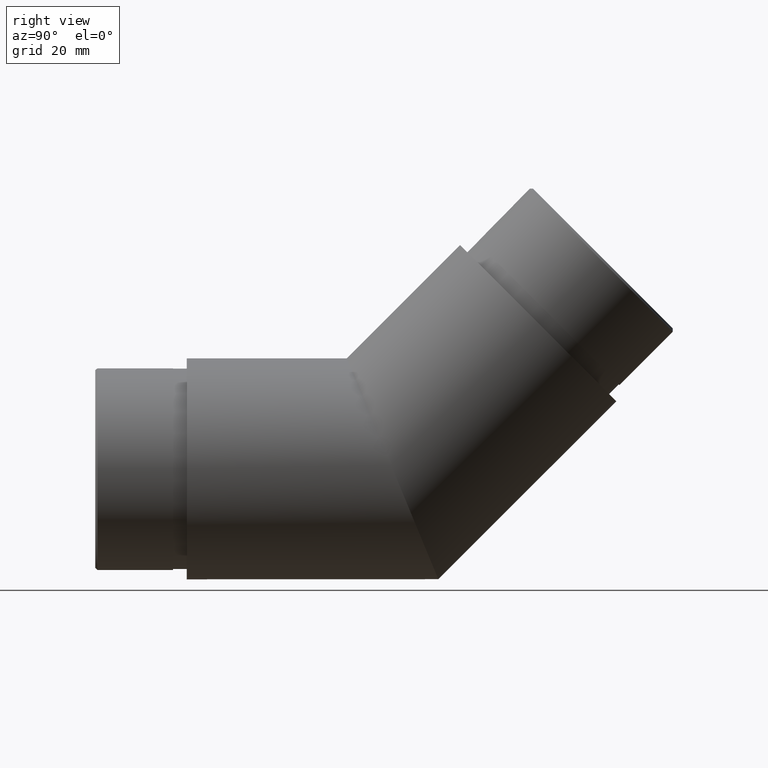
[diagram: clean part render]
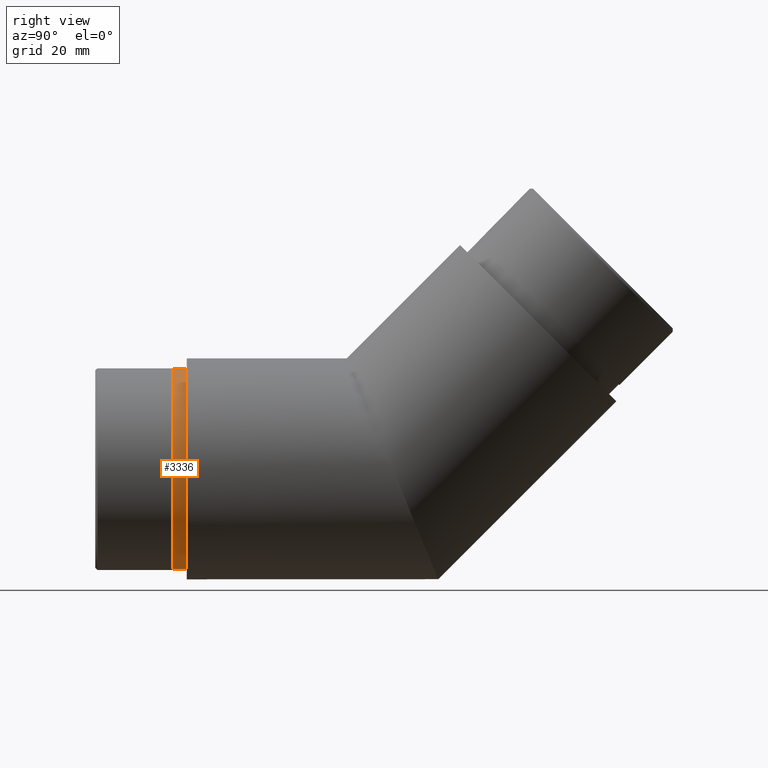
[diagram: same view with one face highlighted and labeled with its STEP entity id]
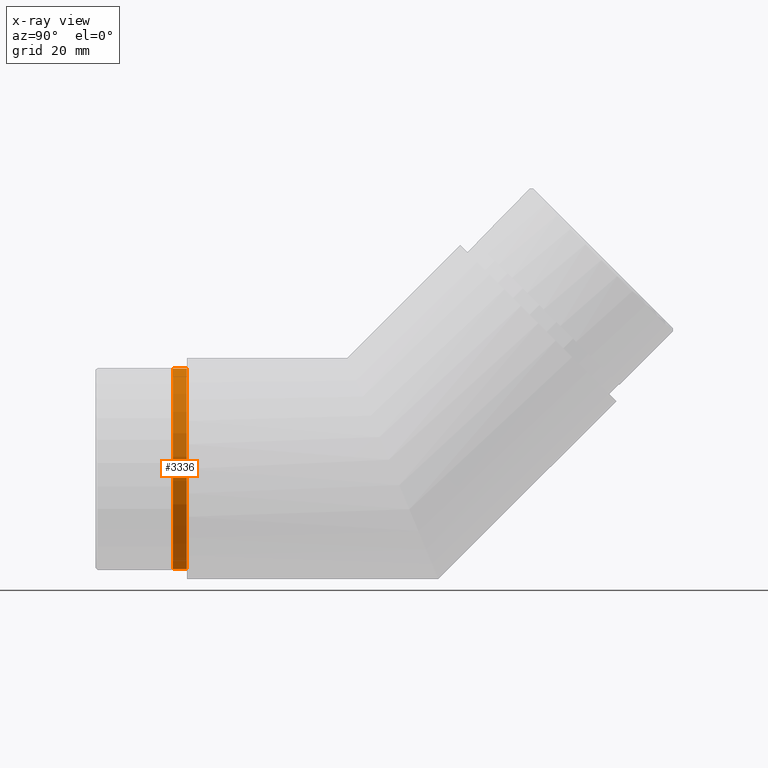
[diagram: x-ray of the same camera — body ghosted, the highlighted face saturated]
A machine part, right view. The second image highlights one B-rep face of the part: STEP entity #3336.
The next image is the same camera in x-ray: the body ghosted, the highlighted face saturated — about 0% of this face is hidden behind the body in this view.
In plain terms, the highlighted cylindrical surface (bore or boss wall) has radius 21.9 mm, axis along (-0, 1, -0).
Its self-contained STEP definition (entity closure, byte-faithful):
#5 = CIRCLE ( 'NONE', #11575, 21.89999999999999900 ) ;
#360 = ORIENTED_EDGE ( 'NONE', *, *, #5099, .F. ) ;
#397 = DIRECTION ( 'NONE',  ( -0.0000000000000000000, -1.000000000000000000, -0.0000000000000000000 ) ) ;
#2309 = CIRCLE ( 'NONE', #4416, 21.89999999999999900 ) ;
#3039 = CARTESIAN_POINT ( 'NONE',  ( 0.0000000000000000000, -3.000000000000000000, 0.0000000000000000000 ) ) ;
#3336 = ADVANCED_FACE ( 'NONE', ( #9937, #5045 ), #5183, .T. ) ;
#3547 = ORIENTED_EDGE ( 'NONE', *, *, #5131, .T. ) ;
#3954 = DIRECTION ( 'NONE',  ( 0.0000000000000000000, 0.0000000000000000000, -1.000000000000000000 ) ) ;
#4416 = AXIS2_PLACEMENT_3D ( 'NONE', #7741, #4940, #3954 ) ;
#4688 = CARTESIAN_POINT ( 'NONE',  ( 0.0000000000000000000, 0.0000000000000000000, 21.89999999999999900 ) ) ;
#4940 = DIRECTION ( 'NONE',  ( 0.0000000000000000000, -1.000000000000000000, 0.0000000000000000000 ) ) ;
#5045 = FACE_OUTER_BOUND ( 'NONE', #10396, .T. ) ;
#5099 = EDGE_CURVE ( 'NONE', #9194, #9194, #2309, .T. ) ;
#5131 = EDGE_CURVE ( 'NONE', #6313, #6313, #5, .T. ) ;
#5183 = CYLINDRICAL_SURFACE ( 'NONE', #11780, 21.89999999999999900 ) ;
#5364 = EDGE_LOOP ( 'NONE', ( #360 ) ) ;
#6313 = VERTEX_POINT ( 'NONE', #4688 ) ;
#7741 = CARTESIAN_POINT ( 'NONE',  ( 0.0000000000000000000, -3.000000000000000000, 0.0000000000000000000 ) ) ;
#7752 = DIRECTION ( 'NONE',  ( 0.0000000000000000000, 0.0000000000000000000, 1.000000000000000000 ) ) ;
#8311 = CARTESIAN_POINT ( 'NONE',  ( 0.0000000000000000000, -3.000000000000000000, -21.89999999999999900 ) ) ;
#9194 = VERTEX_POINT ( 'NONE', #8311 ) ;
#9937 = FACE_OUTER_BOUND ( 'NONE', #5364, .T. ) ;
#10353 = CARTESIAN_POINT ( 'NONE',  ( 0.0000000000000000000, 0.0000000000000000000, 0.0000000000000000000 ) ) ;
#10396 = EDGE_LOOP ( 'NONE', ( #3547 ) ) ;
#11288 = DIRECTION ( 'NONE',  ( 0.0000000000000000000, 0.0000000000000000000, 1.000000000000000000 ) ) ;
#11447 = DIRECTION ( 'NONE',  ( -0.0000000000000000000, 1.000000000000000000, -0.0000000000000000000 ) ) ;
#11575 = AXIS2_PLACEMENT_3D ( 'NONE', #10353, #397, #11288 ) ;
#11780 = AXIS2_PLACEMENT_3D ( 'NONE', #3039, #11447, #7752 ) ;